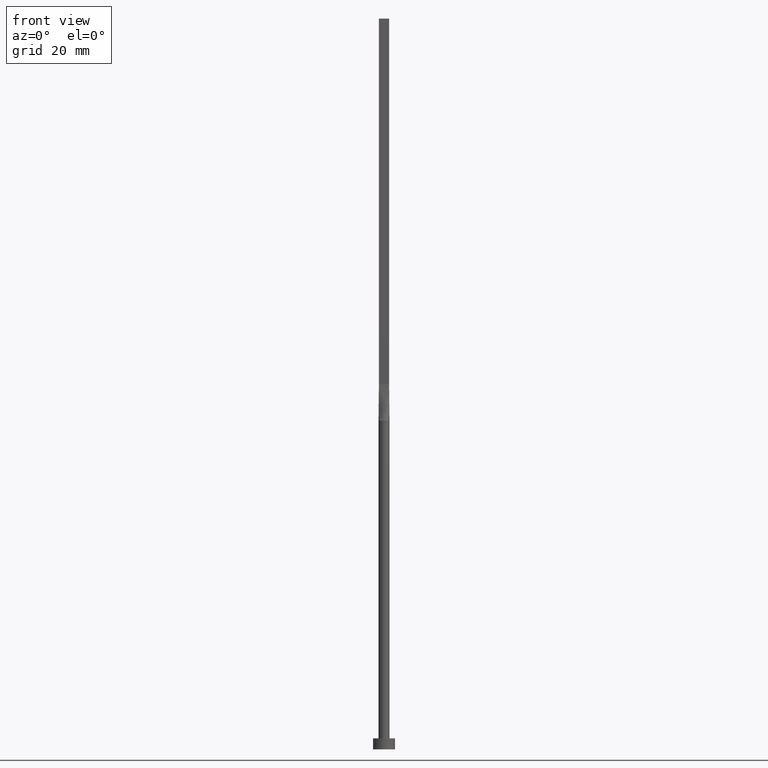
[diagram: clean part render]
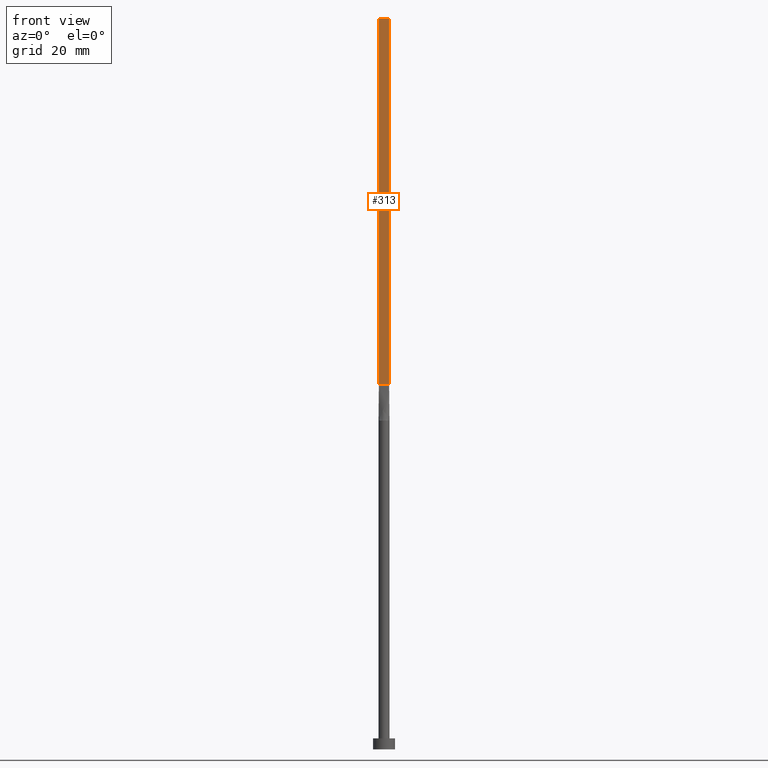
[diagram: same view with one face highlighted and labeled with its STEP entity id]
A machine part, front view. The second image highlights one B-rep face of the part: STEP entity #313.
In plain terms, the highlighted planar face has unit normal (0, 1, -0).
Its self-contained STEP definition (entity closure, byte-faithful):
#30 = ORIENTED_EDGE ( 'NONE', *, *, #529, .F. ) ;
#35 = VECTOR ( 'NONE', #515, 1000.000000000000000 ) ;
#57 = DIRECTION ( 'NONE',  ( 1.000000000000000000, -5.808225924029488744E-17, 0.000000000000000000 ) ) ;
#58 = VECTOR ( 'NONE', #523, 1000.000000000000000 ) ;
#125 = LINE ( 'NONE', #338, #58 ) ;
#141 = DIRECTION ( 'NONE',  ( 5.808225924029488744E-17, 1.000000000000000000, -0.000000000000000000 ) ) ;
#144 = CARTESIAN_POINT ( 'NONE',  ( -1.399999999999999911, -0.3999999999999996336, 99.99999999999998579 ) ) ;
#154 = DIRECTION ( 'NONE',  ( 1.000000000000000000, -5.808225924029488744E-17, 0.000000000000000000 ) ) ;
#184 = DIRECTION ( 'NONE',  ( -1.000000000000000000, 5.808225924029488744E-17, 0.000000000000000000 ) ) ;
#231 = CARTESIAN_POINT ( 'NONE',  ( -1.399999999999999911, -0.3999999999999996336, 200.0000000000000000 ) ) ;
#254 = CARTESIAN_POINT ( 'NONE',  ( 1.399999999999999911, -0.3999999999999998002, 200.0000000000000000 ) ) ;
#279 = LINE ( 'NONE', #231, #346 ) ;
#281 = CARTESIAN_POINT ( 'NONE',  ( 1.399999999999999911, -0.3999999999999998002, 200.0000000000000000 ) ) ;
#291 = VERTEX_POINT ( 'NONE', #281 ) ;
#296 = CARTESIAN_POINT ( 'NONE',  ( -1.399999999999999911, -0.3999999999999996336, 99.99999999999998579 ) ) ;
#313 = ADVANCED_FACE ( 'NONE', ( #450 ), #403, .F. ) ;
#324 = CARTESIAN_POINT ( 'NONE',  ( -1.399999999999999911, -0.3999999999999996336, 200.0000000000000000 ) ) ;
#338 = CARTESIAN_POINT ( 'NONE',  ( -1.399999999999999911, -0.3999999999999996336, 200.0000000000000000 ) ) ;
#346 = VECTOR ( 'NONE', #57, 1000.000000000000000 ) ;
#354 = EDGE_CURVE ( 'NONE', #385, #291, #279, .T. ) ;
#385 = VERTEX_POINT ( 'NONE', #324 ) ;
#400 = CARTESIAN_POINT ( 'NONE',  ( -1.399999999999999911, -0.3999999999999996336, 200.0000000000000000 ) ) ;
#401 = VECTOR ( 'NONE', #154, 1000.000000000000000 ) ;
#403 = PLANE ( 'NONE',  #458 ) ;
#409 = CARTESIAN_POINT ( 'NONE',  ( 1.399999999999999911, -0.3999999999999998002, 99.99999999999998579 ) ) ;
#423 = LINE ( 'NONE', #254, #35 ) ;
#430 = ORIENTED_EDGE ( 'NONE', *, *, #556, .T. ) ;
#437 = EDGE_CURVE ( 'NONE', #477, #482, #551, .T. ) ;
#450 = FACE_OUTER_BOUND ( 'NONE', #546, .T. ) ;
#458 = AXIS2_PLACEMENT_3D ( 'NONE', #400, #141, #184 ) ;
#477 = VERTEX_POINT ( 'NONE', #144 ) ;
#482 = VERTEX_POINT ( 'NONE', #409 ) ;
#515 = DIRECTION ( 'NONE',  ( -0.000000000000000000, -0.000000000000000000, -1.000000000000000000 ) ) ;
#523 = DIRECTION ( 'NONE',  ( -0.000000000000000000, -0.000000000000000000, -1.000000000000000000 ) ) ;
#526 = ORIENTED_EDGE ( 'NONE', *, *, #354, .F. ) ;
#529 = EDGE_CURVE ( 'NONE', #291, #482, #423, .T. ) ;
#546 = EDGE_LOOP ( 'NONE', ( #558, #30, #526, #430 ) ) ;
#551 = LINE ( 'NONE', #296, #401 ) ;
#556 = EDGE_CURVE ( 'NONE', #385, #477, #125, .T. ) ;
#558 = ORIENTED_EDGE ( 'NONE', *, *, #437, .T. ) ;